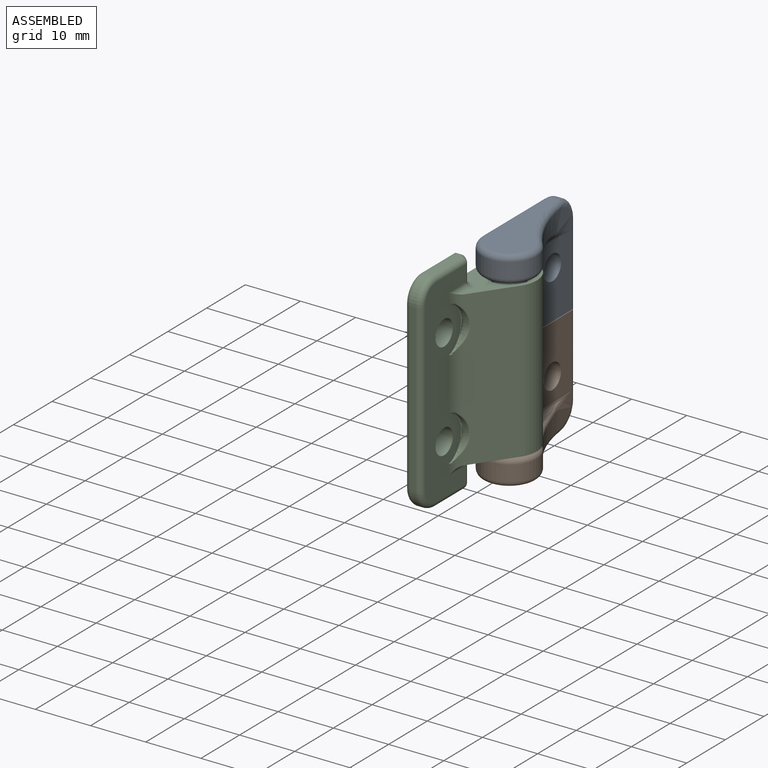
[diagram: assembled view]
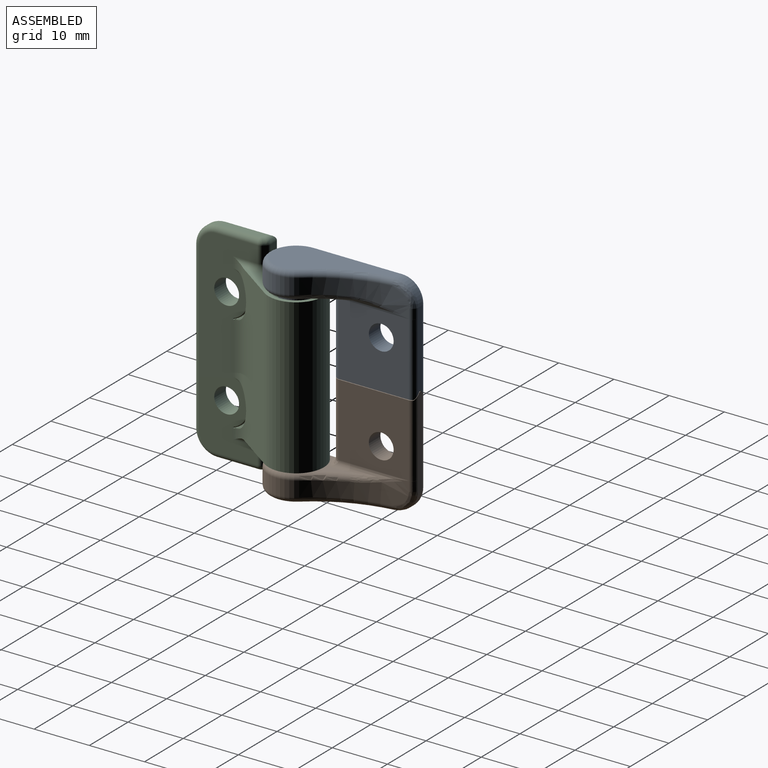
[diagram: assembled view, second angle]
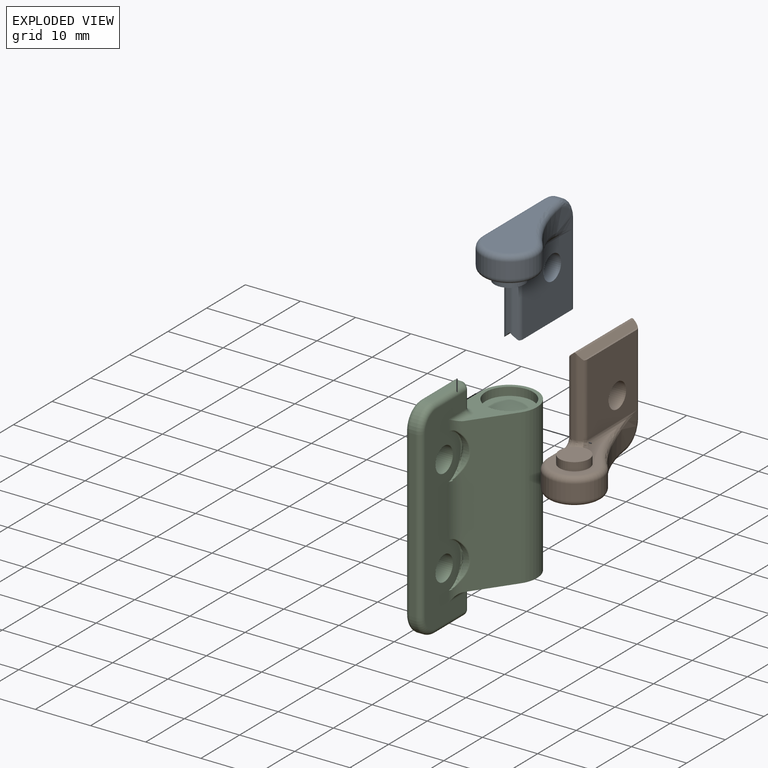
[diagram: exploded view]
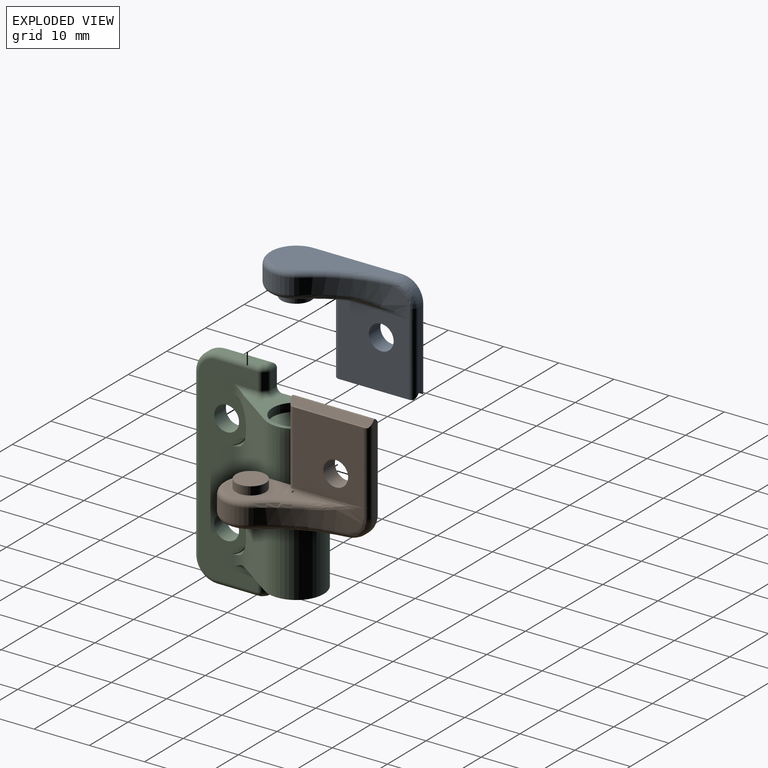
[diagram: exploded view, second angle]
ASSEMBLY  parts=3 mates=3
PART A: 45 faces, bbox 11.4x26x19.6 mm
  f0: cylinder r=0.2mm len=14.3mm, axis (0,-1,0), area 2.2mm2, adj f41,f42,f43,f44
  f1: sphere r=1mm, area 0mm2, adj f5,f15,f20
  f2: plane 20.04x8.04mm, normal (0,0,1), area 90.1mm2, adj f3,f35,f36,f39
  f3: torus R=26mm, axis (0,0,1), area 22.8mm2, adj f2,f4,f6,f35
  f4: bspline ~4.1x4.09mm, area 8.9mm2, adj f3,f5,f6,f39
  f5: cylinder r=1mm len=1.73mm, axis (0,0,-1), area 2.7mm2, adj f1,f4,f6,f40
  f6: cylinder r=25mm len=15.8mm, axis (0,0,1), area 55.5mm2, adj f3,f4,f5,f14,f15,f34
  f7: plane 5.4x5.4mm, normal (0,0,-1), area 22.9mm2, adj f8,f9
  f8: cylinder r=2.7mm len=5.4mm, axis (0,0,-1), area 12.7mm2, adj f7,f9,f13
  f9: cylinder r=2.7mm len=5.4mm, axis (0,0,-1), area 12.7mm2, adj f7,f8,f13
  f10: bspline ~2.21x1.63mm, area 1.1mm2, adj f12,f19,f25
  f11: bspline ~1.34x1.19mm, area 0.4mm2, adj f12,f27,f30
  f12: torus R=5mm, axis (0,0,1), area 1.7mm2, adj f10,f11,f13,f26
  f13: plane 13.27x8.01mm, normal (0,0,-1), area 39.6mm2, adj f8,f9,f12,f14,f19,f30,f32,f33
  f14: torus R=26mm, axis (0,0,1), area 12mm2, adj f6,f13,f15,f33
  f15: bspline ~10.22x2.99mm, area 7.5mm2, adj f1,f6,f14,f19
  f16: cylinder r=2.25mm len=4.5mm, axis (-1,0,0), area 21.2mm2, adj f17,f18,f37
  f17: cylinder r=2.25mm len=4.5mm, axis (-1,0,0), area 21.2mm2, adj f16,f18,f37
  f18: plane 13.15x12.68mm, normal (1,0,0), area 150.8mm2, adj f16,f17,f19,f23,f24,f25
  f19: cylinder r=1mm len=14.1mm, axis (0,1,0), area 12.7mm2, adj f10,f13,f15,f18,f20
  f20: torus R=2mm, axis (0,1,0), area 0.1mm2, adj f1,f19,f23,f40
  f21: cylinder r=0.2mm len=14.12mm, axis (0,1,0), area 2.2mm2, adj f22,f23,f24,f25
  f22: plane 14.92x1.06mm, normal (-0.71,0,-0.71), area 21mm2, adj f21,f23,f25,f26,f27,f28,f40
  f23: cylinder r=1mm len=13.15mm, axis (0,0,-1), area 20.3mm2, adj f18,f20,f21,f22,f24,f40
  f24: plane 13.78x0.17mm, normal (0,0,-1), area 2.2mm2, adj f18,f21,f23,f25
  f25: cylinder r=1mm len=13.15mm, axis (0,0,-1), area 14.8mm2, adj f10,f18,f21,f22,f24,f26
  f26: cylinder r=6mm len=12.83mm, axis (0,0,1), area 4.8mm2, adj f12,f22,f25,f27
  f27: cylinder r=1mm len=12.49mm, axis (0,0,-1), area 6.6mm2, adj f11,f22,f26,f28,f29
  f28: cylinder r=0.25mm len=14.88mm, axis (0,1,0), area 5.8mm2, adj f22,f27,f29,f40,f41
  f29: plane 12.44x0.61mm, normal (-0.03,-1,0), area 7.4mm2, adj f27,f28,f30,f41,f42
  f30: cylinder r=1mm len=1.25mm, axis (1,-0.03,0), area 1.4mm2, adj f11,f13,f29,f31
  f31: bspline ~2.12x2.09mm, area 3.4mm2, adj f30,f32,f37,f42
  f32: cylinder r=1mm len=4.14mm, axis (0,-1,0), area 6.5mm2, adj f13,f31,f33,f37
  f33: torus R=4mm, axis (0,0,1), area 28mm2, adj f13,f14,f32,f34
  f34: cylinder r=5mm len=10mm, axis (0,0,-1), area 53.7mm2, adj f6,f33,f35,f37
  f35: torus R=4mm, axis (0,0,1), area 28mm2, adj f2,f3,f34,f36
  f36: cylinder r=1mm len=16mm, axis (0,-1,0), area 25.1mm2, adj f2,f35,f37,f38
  f37: plane 19.31x18.26mm, normal (-1,0,0), area 230.7mm2, adj f16,f17,f31,f32,f34,f36,f38,f42
  f38: torus R=3mm, axis (1,0,0), area 9mm2, adj f36,f37,f39,f44
  f39: cylinder r=4mm len=4mm, axis (-1,0,0), area 6.9mm2, adj f2,f4,f38,f40
  f40: plane 14.2x1mm, normal (0,1,0), area 14mm2, adj f5,f20,f22,f23,f28,f39,f41,f44
  f41: plane 14.91x1.06mm, normal (0.71,0,-0.71), area 21.2mm2, adj f0,f28,f29,f40,f42,f44
  f42: cylinder r=1mm len=13.15mm, axis (0,0,1), area 19.9mm2, adj f0,f29,f31,f37,f41,f43
  f43: plane 13.96x0.17mm, normal (0,0,-1), area 2.3mm2, adj f0,f37,f42,f44
  f44: cylinder r=1mm len=14.95mm, axis (0,0,1), area 23.2mm2, adj f0,f37,f38,f40,f41,f43
PART B: 45 faces, bbox 11.3x26x20.6 mm
  f0: cylinder r=0.2mm len=14.12mm, axis (0,-1,0), area 2.2mm2, adj f23,f25,f26,f28
  f1: cylinder r=0.2mm len=14.3mm, axis (0,1,0), area 2.2mm2, adj f15,f16,f17,f19
  f2: plane 20.04x8.04mm, normal (0,0,-1), area 90.1mm2, adj f3,f11,f12,f13
  f3: cylinder r=4mm len=4mm, axis (1,0,0), area 6.9mm2, adj f2,f10,f14,f24
  f4: cylinder r=2.25mm len=4.5mm, axis (-1,0,0), area 21.2mm2, adj f5,f6,f27
  f5: cylinder r=2.25mm len=4.5mm, axis (-1,0,0), area 21.2mm2, adj f4,f6,f27
  f6: plane 19.22x18.17mm, normal (-1,0,0), area 231mm2, adj f4,f5,f7,f13,f14,f15,f16,f17
  f7: cylinder r=5mm len=10mm, axis (0,0,-1), area 53.7mm2, adj f6,f8,f12,f35
  f8: cylinder r=25mm len=15.8mm, axis (0,0,1), area 55.5mm2, adj f7,f9,f10,f11,f36,f37
  f9: cylinder r=1mm len=1.73mm, axis (0,0,-1), area 2.7mm2, adj f8,f10,f24,f38
  f10: bspline ~4.1x4.09mm, area 8.9mm2, adj f3,f8,f9,f11
  f11: torus R=26mm, axis (0,0,1), area 22.8mm2, adj f2,f8,f10,f12
  f12: torus R=4mm, axis (0,0,1), area 28mm2, adj f2,f7,f11,f13
  f13: cylinder r=1mm len=16mm, axis (0,1,0), area 25.1mm2, adj f2,f6,f12,f14
  f14: torus R=3mm, axis (-1,0,0), area 9mm2, adj f3,f6,f13,f15
  f15: cylinder r=1mm len=15.7mm, axis (0,0,1), area 23.8mm2, adj f1,f6,f14,f16,f19,f24
  f16: plane 13.97x0.17mm, normal (0,0,1), area 2.3mm2, adj f1,f6,f15,f17
  f17: cylinder r=1mm len=13.87mm, axis (0,0,-1), area 20.5mm2, adj f1,f6,f16,f18,f19,f33
  f18: plane 14.28x0.62mm, normal (-0.03,-1,0), area 8.6mm2, adj f17,f19,f20,f21,f32
  f19: plane 14.91x0.99mm, normal (-0.71,0,0.71), area 19.7mm2, adj f1,f15,f17,f18,f20,f24
  f20: cylinder r=0.35mm len=14.88mm, axis (0,-1,0), area 8.2mm2, adj f18,f19,f21,f23,f24
  f21: cylinder r=1mm len=14.25mm, axis (0,0,-1), area 7.6mm2, adj f18,f20,f22,f23,f31
  f22: cylinder r=6mm len=13.81mm, axis (0,0,-1), area 5.2mm2, adj f21,f23,f28,f30
  f23: plane 14.97x1.04mm, normal (0.71,0,0.71), area 19.5mm2, adj f0,f20,f21,f22,f24,f25,f28
  f24: plane 16.06x1mm, normal (0,1,0), area 15.9mm2, adj f3,f9,f15,f19,f20,f23,f25,f39
  f25: cylinder r=1mm len=13.9mm, axis (0,0,1), area 21mm2, adj f0,f23,f24,f26,f27,f39
  f26: plane 13.78x0.17mm, normal (0,0,1), area 2.2mm2, adj f0,f25,f27,f28
  f27: plane 13.15x12.68mm, normal (1,0,0), area 150.8mm2, adj f4,f5,f25,f26,f28,f40
  f28: cylinder r=1mm len=13.47mm, axis (0,0,-1), area 14.9mm2, adj f0,f22,f23,f26,f27,f29
  f29: bspline ~2.22x1.63mm, area 1.1mm2, adj f28,f30,f40
  f30: torus R=5mm, axis (0,0,-1), area 1.7mm2, adj f22,f29,f31,f41
  f31: bspline ~1.35x1.19mm, area 0.4mm2, adj f21,f30,f32
  f32: cylinder r=1mm len=1.25mm, axis (-1,0.03,0), area 1.4mm2, adj f18,f31,f33,f41
  f33: bspline ~2.12x2.09mm, area 3.4mm2, adj f6,f17,f32,f34
  f34: cylinder r=1mm len=4.14mm, axis (0,-1,0), area 6.5mm2, adj f6,f33,f35,f41
  f35: torus R=4mm, axis (0,0,1), area 28mm2, adj f7,f34,f36,f41
  f36: torus R=26mm, axis (0,0,1), area 12mm2, adj f8,f35,f37,f41
  f37: bspline ~10.22x2.99mm, area 7.5mm2, adj f8,f36,f38,f40
  f38: sphere r=1mm, area 0mm2, adj f9,f37,f39
  f39: torus R=2mm, axis (0,-1,0), area 0.1mm2, adj f24,f25,f38,f40
  f40: cylinder r=1mm len=14.1mm, axis (0,-1,0), area 12.7mm2, adj f27,f29,f37,f39,f41
  f41: plane 13.27x8.01mm, normal (0,0,1), area 39.6mm2, adj f30,f32,f34,f35,f36,f40,f42,f43
  f42: cylinder r=2.7mm len=5.4mm, axis (0,0,1), area 12.7mm2, adj f41,f43,f44
  f43: cylinder r=2.7mm len=5.4mm, axis (0,0,1), area 12.7mm2, adj f41,f42,f44
  f44: plane 5.4x5.4mm, normal (0,0,1), area 22.9mm2, adj f42,f43
PART C: 78 faces, bbox 10.8x26.1x39.5 mm
  f0: plane 8.6x8.6mm, normal (0,0,-1), area 58.1mm2, adj f1,f2
  f1: cylinder r=4.3mm len=8.6mm, axis (0,0,-1), area 20.3mm2, adj f0,f2,f70
  f2: cylinder r=4.3mm len=8.6mm, axis (0,0,-1), area 20.3mm2, adj f0,f1,f70
  f3: plane 8.6x8.6mm, normal (0,0,1), area 58.1mm2, adj f4,f5
  f4: cylinder r=4.3mm len=8.6mm, axis (0,0,-1), area 20.3mm2, adj f3,f5,f44
  f5: cylinder r=4.3mm len=8.6mm, axis (0,0,-1), area 20.3mm2, adj f3,f4,f44
  f6: cylinder r=1mm len=1.12mm, axis (0.71,-0.71,0), area 0.9mm2, adj f7,f39,f43,f44
  f7: torus R=2mm, axis (0,0,-1), area 1.7mm2, adj f6,f38,f44,f45
  f8: cylinder r=2.25mm len=4.5mm, axis (-1,0,0), area 21.2mm2, adj f9,f37,f76
  f9: cylinder r=2.25mm len=4.5mm, axis (-1,0,0), area 21.2mm2, adj f8,f37,f76
  f10: cylinder r=2.25mm len=4.5mm, axis (-1,0,0), area 21.2mm2, adj f11,f37,f76
  f11: cylinder r=2.25mm len=4.5mm, axis (-1,0,0), area 21.2mm2, adj f10,f37,f76
  f12: sphere r=1mm, area 0.6mm2, adj f15,f25,f73
  f13: cylinder r=1mm len=1.12mm, axis (-0.71,0.71,0), area 0.9mm2, adj f14,f16,f69,f70
  f14: torus R=2mm, axis (0,0,1), area 1.7mm2, adj f13,f15,f70,f71
  f15: cylinder r=1mm len=3mm, axis (0,0,-1), area 2.4mm2, adj f12,f14,f16,f72
  f16: plane 3x0.41mm, normal (0.71,0.71,0), area 1.8mm2, adj f13,f15,f17,f25
  f17: cylinder r=1mm len=3mm, axis (0,0,1), area 2.4mm2, adj f16,f24,f37,f69
  f18: plane 8x1mm, normal (0,0,1), area 7.9mm2, adj f19,f31,f32,f34,f36
  f19: cylinder r=4mm len=4mm, axis (1,0,0), area 6.3mm2, adj f18,f20,f28,f30
  f20: torus R=3mm, axis (-1,0,0), area 9mm2, adj f19,f21,f36,f37
  f21: cylinder r=1mm len=30mm, axis (0,0,-1), area 47.1mm2, adj f20,f22,f28,f37
  f22: torus R=3mm, axis (-1,0,0), area 9mm2, adj f21,f23,f27,f37
  f23: cylinder r=1mm len=7.59mm, axis (0,1,0), area 11.9mm2, adj f22,f24,f26,f37
  f24: sphere r=1mm, area 0.6mm2, adj f17,f23,f25
  f25: cylinder r=1mm len=1.12mm, axis (-0.71,0.71,0), area 0.9mm2, adj f12,f16,f24,f26
  f26: plane 8x1mm, normal (0,0,-1), area 7.9mm2, adj f23,f25,f27,f73,f74
  f27: cylinder r=4mm len=4mm, axis (1,0,0), area 6.3mm2, adj f22,f26,f28,f75
  f28: plane 30x1mm, normal (0,-1,0), area 30mm2, adj f19,f21,f27,f29
  f29: cylinder r=1mm len=30mm, axis (0,0,1), area 47.1mm2, adj f28,f30,f75,f76
  f30: torus R=3mm, axis (-1,0,0), area 9mm2, adj f19,f29,f31,f76
  f31: cylinder r=1mm len=9mm, axis (0,1,0), area 13.4mm2, adj f18,f30,f32,f76
  f32: cylinder r=1mm len=1.59mm, axis (1,0,0), area 1.7mm2, adj f18,f31,f33,f41
  f33: sphere r=1mm, area 0.6mm2, adj f32,f34,f40
  f34: cylinder r=1mm len=1.12mm, axis (0.71,-0.71,0), area 0.9mm2, adj f18,f33,f35,f39
  f35: sphere r=1mm, area 0.8mm2, adj f34,f36,f38
  f36: cylinder r=1mm len=7.59mm, axis (0,-1,0), area 11.9mm2, adj f18,f20,f35,f37
  f37: plane 36.8x11.39mm, normal (1,0,0), area 251.3mm2, adj f8,f9,f10,f11,f17,f20,f21,f22
  f38: cylinder r=1mm len=3mm, axis (0,0,1), area 2.4mm2, adj f7,f35,f37,f39
  f39: plane 3x0.41mm, normal (0.71,0.71,0), area 1.8mm2, adj f6,f34,f38,f40
  f40: cylinder r=1mm len=3mm, axis (0,0,-1), area 2.4mm2, adj f33,f39,f41,f43
  f41: plane 3x1.59mm, normal (0,1,0), area 4.8mm2, adj f32,f40,f42,f76
  f42: cylinder r=1mm len=1.59mm, axis (1,0,0), area 2.5mm2, adj f41,f43,f44,f76
  f43: torus R=2mm, axis (0,0,1), area 1.7mm2, adj f6,f40,f42,f44
  f44: plane 15.15x10mm, normal (0,0,1), area 41.5mm2, adj f4,f5,f6,f7,f42,f43,f45,f67
  f45: cylinder r=1mm len=4.42mm, axis (0,-1,0), area 4.8mm2, adj f7,f37,f44,f46,f67
  f46: cylinder r=4mm len=3.05mm, axis (0,0,-1), area 4.4mm2, adj f37,f45,f47,f48,f49,f67
  f47: bspline ~0.76x0.33mm, area 0mm2, adj f46,f48,f53
  f48: bspline ~1.11x0.81mm, area 0.2mm2, adj f46,f47,f49,f53
  f49: bspline ~0.83x0.75mm, area 0.2mm2, adj f46,f48,f50,f51
  f50: bspline ~6.28x1.33mm, area 1.4mm2, adj f49,f51,f55,f67
  f51: cylinder r=4.5mm len=7mm, axis (1,0,0), area 5.9mm2, adj f49,f50,f53,f55
  f52: bspline ~0.76x0.33mm, area 0mm2, adj f53,f54,f56
  f53: torus R=4.3mm, axis (1,0,0), area 6.2mm2, adj f37,f47,f48,f51,f52,f54
  f54: bspline ~1.11x0.81mm, area 0.2mm2, adj f52,f53,f55,f56
  f55: bspline ~0.83x0.75mm, area 0.2mm2, adj f50,f51,f54,f56
  f56: cylinder r=4mm len=11.7mm, axis (0,0,-1), area 24.9mm2, adj f37,f52,f54,f55,f57,f58,f59,f67
  f57: bspline ~0.76x0.33mm, area 0mm2, adj f56,f58,f63
  f58: bspline ~1.11x0.81mm, area 0.2mm2, adj f56,f57,f59,f63
  f59: bspline ~0.83x0.75mm, area 0.2mm2, adj f56,f58,f60,f61
  f60: bspline ~6.28x1.33mm, area 1.4mm2, adj f59,f61,f65,f67
  f61: cylinder r=4.5mm len=7mm, axis (1,0,0), area 5.9mm2, adj f59,f60,f63,f65
  f62: bspline ~0.76x0.33mm, area 0mm2, adj f63,f64,f66
  f63: torus R=4.3mm, axis (1,0,0), area 6.2mm2, adj f37,f57,f58,f61,f62,f64
  f64: bspline ~1.11x0.81mm, area 0.2mm2, adj f62,f63,f65,f66
  f65: bspline ~0.83x0.75mm, area 0.2mm2, adj f60,f61,f64,f66
  f66: cylinder r=4mm len=3.05mm, axis (0,0,-1), area 4.4mm2, adj f37,f62,f64,f65,f67,f68
  f67: plane 28.08x7.68mm, normal (0.82,-0.57,0), area 250.8mm2, adj f44,f45,f46,f50,f56,f60,f66,f68
  f68: cylinder r=1mm len=4.42mm, axis (0,1,0), area 4.8mm2, adj f37,f66,f67,f69,f70
  f69: torus R=2mm, axis (0,0,-1), area 1.7mm2, adj f13,f17,f68,f70
  f70: plane 15.15x10mm, normal (0,0,-1), area 41.5mm2, adj f1,f2,f13,f14,f67,f68,f69,f71
  f71: cylinder r=1mm len=1.59mm, axis (-1,0,0), area 2.5mm2, adj f14,f70,f72,f76
  f72: plane 3x1.59mm, normal (0,1,0), area 4.8mm2, adj f15,f71,f73,f76
  f73: cylinder r=1mm len=1.59mm, axis (-1,0,0), area 1.7mm2, adj f12,f26,f72,f74
  f74: cylinder r=1mm len=9mm, axis (0,-1,0), area 13.4mm2, adj f26,f73,f75,f76
  f75: torus R=3mm, axis (-1,0,0), area 9mm2, adj f27,f29,f74,f76
  f76: plane 36x19mm, normal (-1,0,0), area 592.8mm2, adj f8,f9,f10,f11,f29,f30,f31,f41
  f77: cylinder r=5mm len=28mm, axis (0,0,1), area 525.3mm2, adj f44,f67,f70,f76
PLACE A t=(211.74,90.19,-30.04)mm
PLACE B t=(211.74,90.19,-30.04)mm
PLACE C t=(211.74,90.19,-30.04)mm
MATE revolute B.f42 <-> C.f1  axis (0,0,1) through (216.74,110.19,-29.49)mm
MATE planar A.f18 <-> B.f27  axis (1,0,0) through (214.74,122.71,-9.65)mm
MATE revolute C.f2 <-> A.f26  axis (0,0,-1) through (216.74,110.19,-2.79)mm
